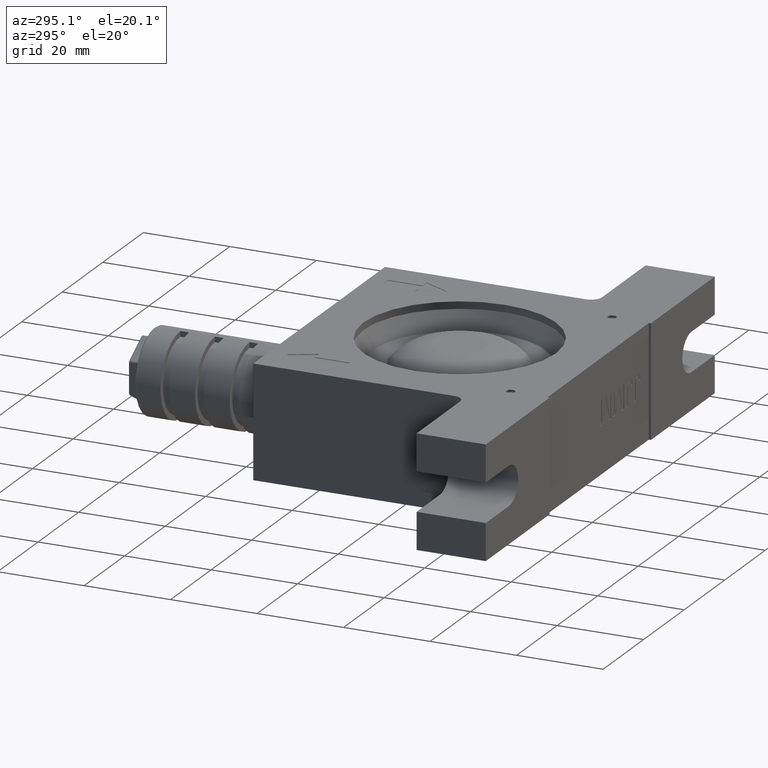
[diagram: clean part render]
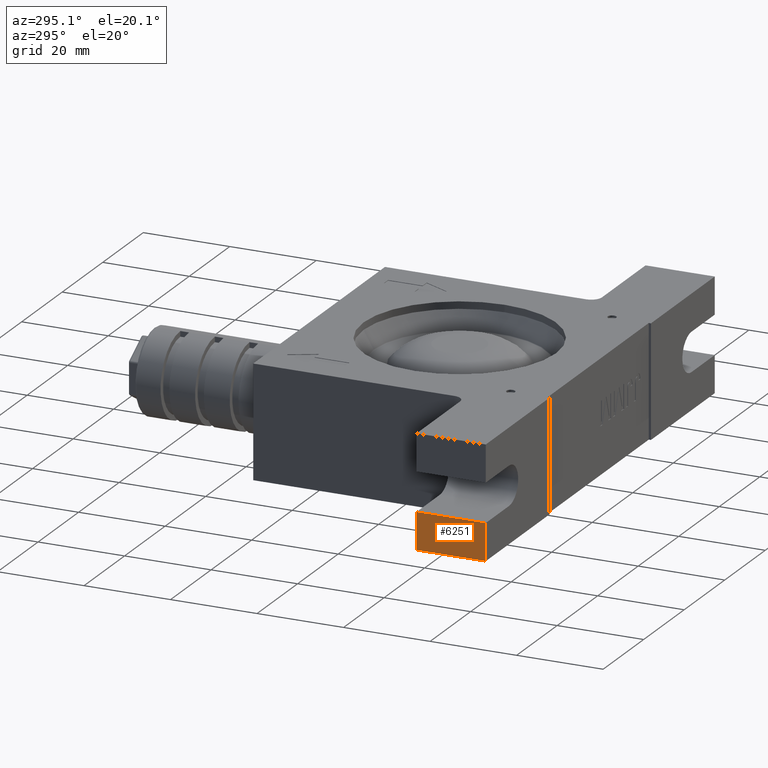
[diagram: same view with one face highlighted and labeled with its STEP entity id]
A machine part, auxiliary view. The second image highlights one B-rep face of the part: STEP entity #6251.
In plain terms, the highlighted planar face has unit normal (1, 0, 0).
Its self-contained STEP definition (entity closure, byte-faithful):
#190 = DIRECTION ( 'NONE',  ( 0.0000000000000000000, 0.0000000000000000000, -1.000000000000000000 ) ) ;
#804 = EDGE_CURVE ( 'NONE', #1589, #5872, #6779, .T. ) ;
#978 = ORIENTED_EDGE ( 'NONE', *, *, #3454, .T. ) ;
#1036 = DIRECTION ( 'NONE',  ( 0.0000000000000000000, 0.0000000000000000000, -1.000000000000000000 ) ) ;
#1159 = ORIENTED_EDGE ( 'NONE', *, *, #6153, .F. ) ;
#1220 = FACE_OUTER_BOUND ( 'NONE', #6990, .T. ) ;
#1589 = VERTEX_POINT ( 'NONE', #2557 ) ;
#1640 = DIRECTION ( 'NONE',  ( 0.0000000000000000000, 1.000000000000000000, 0.0000000000000000000 ) ) ;
#1903 = VERTEX_POINT ( 'NONE', #6966 ) ;
#2115 = CARTESIAN_POINT ( 'NONE',  ( -56.50000000000000000, -32.50000000000000000, 13.00000000000000000 ) ) ;
#2298 = CARTESIAN_POINT ( 'NONE',  ( -56.50000000000000000, -16.50000000000000000, -4.500000000000000000 ) ) ;
#2557 = CARTESIAN_POINT ( 'NONE',  ( -56.50000000000000000, -32.50000000000000000, -4.500000000000000000 ) ) ;
#2695 = LINE ( 'NONE', #4321, #5403 ) ;
#2830 = ORIENTED_EDGE ( 'NONE', *, *, #3044, .T. ) ;
#3044 = EDGE_CURVE ( 'NONE', #1589, #5997, #2695, .T. ) ;
#3062 = DIRECTION ( 'NONE',  ( 0.0000000000000000000, 0.0000000000000000000, 1.000000000000000000 ) ) ;
#3113 = CARTESIAN_POINT ( 'NONE',  ( -56.50000000000000000, -16.50000000000000000, -13.00000000000000000 ) ) ;
#3454 = EDGE_CURVE ( 'NONE', #1903, #5872, #6224, .T. ) ;
#3636 = DIRECTION ( 'NONE',  ( 0.0000000000000000000, -1.000000000000000000, 0.0000000000000000000 ) ) ;
#4215 = DIRECTION ( 'NONE',  ( 1.000000000000000000, 0.0000000000000000000, 0.0000000000000000000 ) ) ;
#4249 = LINE ( 'NONE', #3113, #6782 ) ;
#4321 = CARTESIAN_POINT ( 'NONE',  ( -56.50000000000000000, -32.50000000000000000, -4.500000000000000000 ) ) ;
#4753 = VECTOR ( 'NONE', #190, 1000.000000000000000 ) ;
#4936 = ORIENTED_EDGE ( 'NONE', *, *, #804, .F. ) ;
#5046 = AXIS2_PLACEMENT_3D ( 'NONE', #2115, #4215, #1036 ) ;
#5403 = VECTOR ( 'NONE', #1640, 1000.000000000000000 ) ;
#5824 = CARTESIAN_POINT ( 'NONE',  ( -56.50000000000000000, -32.50000000000000000, -13.00000000000000000 ) ) ;
#5872 = VERTEX_POINT ( 'NONE', #5824 ) ;
#5997 = VERTEX_POINT ( 'NONE', #2298 ) ;
#6065 = VECTOR ( 'NONE', #3636, 1000.000000000000000 ) ;
#6153 = EDGE_CURVE ( 'NONE', #1903, #5997, #4249, .T. ) ;
#6224 = LINE ( 'NONE', #6288, #6065 ) ;
#6251 = ADVANCED_FACE ( 'NONE', ( #1220 ), #6421, .F. ) ;
#6288 = CARTESIAN_POINT ( 'NONE',  ( -56.50000000000000000, -32.50000000000000000, -13.00000000000000000 ) ) ;
#6421 = PLANE ( 'NONE',  #5046 ) ;
#6759 = CARTESIAN_POINT ( 'NONE',  ( -56.50000000000000000, -32.50000000000000000, 13.00000000000000000 ) ) ;
#6779 = LINE ( 'NONE', #6759, #4753 ) ;
#6782 = VECTOR ( 'NONE', #3062, 1000.000000000000000 ) ;
#6966 = CARTESIAN_POINT ( 'NONE',  ( -56.50000000000000000, -16.50000000000000000, -13.00000000000000000 ) ) ;
#6990 = EDGE_LOOP ( 'NONE', ( #4936, #2830, #1159, #978 ) ) ;